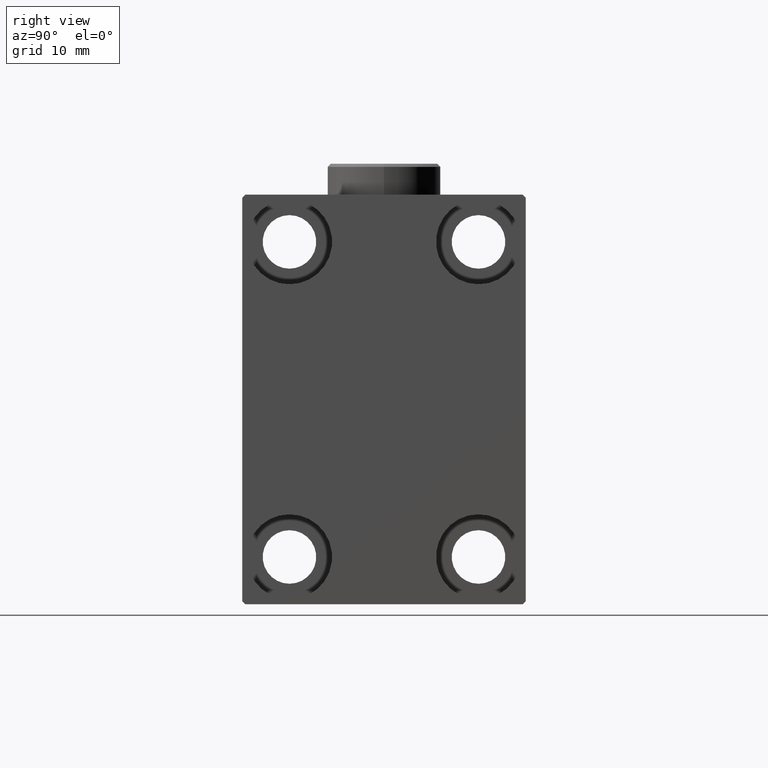
[diagram: clean part render]
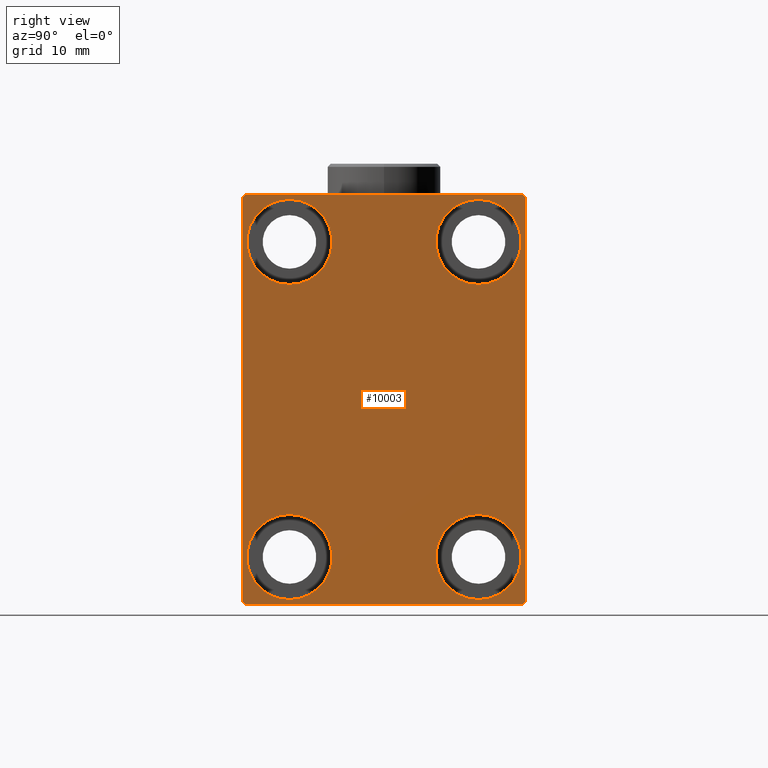
[diagram: same view with one face highlighted and labeled with its STEP entity id]
A machine part, right view. The second image highlights one B-rep face of the part: STEP entity #10003.
In plain terms, the highlighted planar face has unit normal (1, 0, 0).
Its self-contained STEP definition (entity closure, byte-faithful):
#655 = AXIS2_PLACEMENT_3D ( 'NONE', #2277, #5951, #16246 ) ;
#1473 = EDGE_CURVE ( 'NONE', #38731, #20334, #6616, .T. ) ;
#1902 = FACE_BOUND ( 'NONE', #36703, .T. ) ;
#2055 = VECTOR ( 'NONE', #3859, 1000.000000000000000 ) ;
#2233 = CARTESIAN_POINT ( 'NONE',  ( 70.00000000000000000, -22.50000000000000711, 31.99999999999999289 ) ) ;
#2277 = CARTESIAN_POINT ( 'NONE',  ( 70.00000000000000000, -14.99999999999999645, 25.00000000000000000 ) ) ;
#2443 = DIRECTION ( 'NONE',  ( 0.000000000000000000, -1.000000000000000000, -1.541976423090495387E-16 ) ) ;
#3030 = DIRECTION ( 'NONE',  ( 0.000000000000000000, 0.000000000000000000, 1.000000000000000000 ) ) ;
#3256 = EDGE_CURVE ( 'NONE', #29028, #9240, #28577, .T. ) ;
#3859 = DIRECTION ( 'NONE',  ( -0.000000000000000000, 0.7071067811865378028, -0.7071067811865573427 ) ) ;
#3940 = EDGE_LOOP ( 'NONE', ( #5705, #39640, #29679, #18976, #36416, #7003, #16248, #39121 ) ) ;
#4949 = CARTESIAN_POINT ( 'NONE',  ( 70.00000000000000000, -14.99999999999999645, 25.00000000000000000 ) ) ;
#5705 = ORIENTED_EDGE ( 'NONE', *, *, #19979, .T. ) ;
#5951 = DIRECTION ( 'NONE',  ( -1.000000000000000000, -0.000000000000000000, -0.000000000000000000 ) ) ;
#6288 = ORIENTED_EDGE ( 'NONE', *, *, #29808, .T. ) ;
#6470 = CARTESIAN_POINT ( 'NONE',  ( 70.00000000000000000, 22.50000000000000000, -32.00000000000002132 ) ) ;
#6579 = EDGE_CURVE ( 'NONE', #35802, #22661, #22049, .T. ) ;
#6616 = CIRCLE ( 'NONE', #26330, 6.749999999999999112 ) ;
#6804 = DIRECTION ( 'NONE',  ( 0.000000000000000000, -0.7071067811865474617, -0.7071067811865474617 ) ) ;
#7003 = ORIENTED_EDGE ( 'NONE', *, *, #6579, .T. ) ;
#7149 = VERTEX_POINT ( 'NONE', #19821 ) ;
#7468 = CARTESIAN_POINT ( 'NONE',  ( 70.00000000000000000, -27.25000000000000000, 27.25000000000000000 ) ) ;
#7485 = AXIS2_PLACEMENT_3D ( 'NONE', #11896, #15101, #29471 ) ;
#7834 = VERTEX_POINT ( 'NONE', #17421 ) ;
#8466 = DIRECTION ( 'NONE',  ( 0.000000000000000000, 0.000000000000000000, 1.000000000000000000 ) ) ;
#8545 = DIRECTION ( 'NONE',  ( 1.000000000000000000, 0.000000000000000000, 0.000000000000000000 ) ) ;
#8773 = PLANE ( 'NONE',  #34136 ) ;
#9187 = ORIENTED_EDGE ( 'NONE', *, *, #1473, .T. ) ;
#9240 = VERTEX_POINT ( 'NONE', #36173 ) ;
#9448 = DIRECTION ( 'NONE',  ( 0.000000000000000000, -1.067522139062650425E-16, 1.000000000000000000 ) ) ;
#9841 = DIRECTION ( 'NONE',  ( -1.000000000000000000, -0.000000000000000000, -0.000000000000000000 ) ) ;
#10003 = ADVANCED_FACE ( 'NONE', ( #25912, #29549, #1902, #22934, #43951 ), #8773, .T. ) ;
#10612 = VERTEX_POINT ( 'NONE', #23057 ) ;
#10738 = CARTESIAN_POINT ( 'NONE',  ( 70.00000000000000000, -27.25000000000032330, -27.24999999999957012 ) ) ;
#11004 = CARTESIAN_POINT ( 'NONE',  ( 70.00000000000000000, 15.00000000000000355, 25.00000000000000000 ) ) ;
#11054 = CARTESIAN_POINT ( 'NONE',  ( 70.00000000000000000, 14.99999999999999645, -18.25000000000000355 ) ) ;
#11336 = AXIS2_PLACEMENT_3D ( 'NONE', #4949, #22776, #33051 ) ;
#11629 = DIRECTION ( 'NONE',  ( -0.000000000000000000, -0.7071067811865425767, 0.7071067811865525687 ) ) ;
#11802 = EDGE_CURVE ( 'NONE', #16360, #27689, #13933, .T. ) ;
#11808 = EDGE_CURVE ( 'NONE', #7149, #35087, #39992, .T. ) ;
#11854 = LINE ( 'NONE', #28986, #34588 ) ;
#11896 = CARTESIAN_POINT ( 'NONE',  ( 70.00000000000000000, 14.99999999999999645, -25.00000000000000000 ) ) ;
#11923 = ORIENTED_EDGE ( 'NONE', *, *, #3256, .T. ) ;
#11998 = ORIENTED_EDGE ( 'NONE', *, *, #11808, .T. ) ;
#12680 = CARTESIAN_POINT ( 'NONE',  ( 70.00000000000000000, -21.99999999999999289, 32.49999999999999289 ) ) ;
#12740 = LINE ( 'NONE', #16632, #43913 ) ;
#12966 = EDGE_CURVE ( 'NONE', #38550, #43564, #38766, .T. ) ;
#13600 = VECTOR ( 'NONE', #40698, 1000.000000000000000 ) ;
#13842 = CARTESIAN_POINT ( 'NONE',  ( 70.00000000000000000, -22.50000000000000711, 32.49999999999999289 ) ) ;
#13933 = LINE ( 'NONE', #10738, #2055 ) ;
#14003 = CARTESIAN_POINT ( 'NONE',  ( 70.00000000000000000, 14.99999999999999645, -25.00000000000000000 ) ) ;
#14156 = DIRECTION ( 'NONE',  ( -1.000000000000000000, -0.000000000000000000, -0.000000000000000000 ) ) ;
#14158 = EDGE_CURVE ( 'NONE', #7834, #26757, #17488, .T. ) ;
#15101 = DIRECTION ( 'NONE',  ( -1.000000000000000000, -0.000000000000000000, -0.000000000000000000 ) ) ;
#15298 = ORIENTED_EDGE ( 'NONE', *, *, #39728, .T. ) ;
#15307 = EDGE_LOOP ( 'NONE', ( #15298, #9187 ) ) ;
#15374 = CIRCLE ( 'NONE', #39436, 6.749999999999999112 ) ;
#15835 = LINE ( 'NONE', #40731, #25718 ) ;
#15854 = CARTESIAN_POINT ( 'NONE',  ( 70.00000000000000000, 0.000000000000000000, 0.000000000000000000 ) ) ;
#15882 = ORIENTED_EDGE ( 'NONE', *, *, #33361, .T. ) ;
#16090 = CARTESIAN_POINT ( 'NONE',  ( 70.00000000000000000, 15.00000000000000355, 31.75000000000000000 ) ) ;
#16246 = DIRECTION ( 'NONE',  ( 0.000000000000000000, 0.000000000000000000, 1.000000000000000000 ) ) ;
#16248 = ORIENTED_EDGE ( 'NONE', *, *, #22234, .T. ) ;
#16360 = VERTEX_POINT ( 'NONE', #28987 ) ;
#16632 = CARTESIAN_POINT ( 'NONE',  ( 70.00000000000000000, 22.49999999999999289, 32.50000000000000000 ) ) ;
#17407 = EDGE_CURVE ( 'NONE', #9240, #29028, #15374, .T. ) ;
#17421 = CARTESIAN_POINT ( 'NONE',  ( 70.00000000000000000, -14.99999999999999645, 18.25000000000000355 ) ) ;
#17488 = CIRCLE ( 'NONE', #655, 6.749999999999999112 ) ;
#17641 = AXIS2_PLACEMENT_3D ( 'NONE', #22955, #18845, #22274 ) ;
#18845 = DIRECTION ( 'NONE',  ( -1.000000000000000000, -0.000000000000000000, -0.000000000000000000 ) ) ;
#18976 = ORIENTED_EDGE ( 'NONE', *, *, #11802, .T. ) ;
#19296 = CARTESIAN_POINT ( 'NONE',  ( 70.00000000000000000, 27.25000000000032685, -27.24999999999957012 ) ) ;
#19783 = EDGE_LOOP ( 'NONE', ( #43046, #15882 ) ) ;
#19821 = CARTESIAN_POINT ( 'NONE',  ( 70.00000000000000000, -15.00000000000000355, -18.25000000000000355 ) ) ;
#19979 = EDGE_CURVE ( 'NONE', #10612, #38550, #12740, .T. ) ;
#20334 = VERTEX_POINT ( 'NONE', #20437 ) ;
#20437 = CARTESIAN_POINT ( 'NONE',  ( 70.00000000000000000, 14.99999999999999645, -31.75000000000000000 ) ) ;
#21088 = VECTOR ( 'NONE', #6804, 1000.000000000000114 ) ;
#22049 = LINE ( 'NONE', #19296, #33733 ) ;
#22234 = EDGE_CURVE ( 'NONE', #22661, #42015, #15835, .T. ) ;
#22274 = DIRECTION ( 'NONE',  ( 0.000000000000000000, 0.000000000000000000, 1.000000000000000000 ) ) ;
#22488 = EDGE_CURVE ( 'NONE', #43564, #16360, #31641, .T. ) ;
#22661 = VERTEX_POINT ( 'NONE', #6470 ) ;
#22776 = DIRECTION ( 'NONE',  ( -1.000000000000000000, -0.000000000000000000, -0.000000000000000000 ) ) ;
#22883 = CARTESIAN_POINT ( 'NONE',  ( 70.00000000000000000, -22.50000000000000711, -32.50000000000000711 ) ) ;
#22934 = FACE_BOUND ( 'NONE', #28107, .T. ) ;
#22955 = CARTESIAN_POINT ( 'NONE',  ( 70.00000000000000000, 15.00000000000000355, 25.00000000000000000 ) ) ;
#23057 = CARTESIAN_POINT ( 'NONE',  ( 70.00000000000000000, 21.99999999999999289, 32.50000000000000000 ) ) ;
#24602 = CARTESIAN_POINT ( 'NONE',  ( 70.00000000000000000, -15.00000000000000355, -25.00000000000000000 ) ) ;
#25113 = CARTESIAN_POINT ( 'NONE',  ( 70.00000000000000000, -15.00000000000000355, -25.00000000000000000 ) ) ;
#25718 = VECTOR ( 'NONE', #9448, 1000.000000000000000 ) ;
#25912 = FACE_BOUND ( 'NONE', #15307, .T. ) ;
#26330 = AXIS2_PLACEMENT_3D ( 'NONE', #14003, #41427, #3030 ) ;
#26757 = VERTEX_POINT ( 'NONE', #44495 ) ;
#27639 = AXIS2_PLACEMENT_3D ( 'NONE', #25113, #14156, #27650 ) ;
#27650 = DIRECTION ( 'NONE',  ( 0.000000000000000000, 0.000000000000000000, 1.000000000000000000 ) ) ;
#27689 = VERTEX_POINT ( 'NONE', #31032 ) ;
#28107 = EDGE_LOOP ( 'NONE', ( #6288, #11998 ) ) ;
#28577 = CIRCLE ( 'NONE', #17641, 6.749999999999999112 ) ;
#28652 = DIRECTION ( 'NONE',  ( 0.000000000000000000, 0.000000000000000000, -1.000000000000000000 ) ) ;
#28986 = CARTESIAN_POINT ( 'NONE',  ( 70.00000000000000000, 27.25000000000014921, 27.24999999999976907 ) ) ;
#28987 = CARTESIAN_POINT ( 'NONE',  ( 70.00000000000000000, -22.50000000000000711, -32.00000000000000711 ) ) ;
#29028 = VERTEX_POINT ( 'NONE', #16090 ) ;
#29471 = DIRECTION ( 'NONE',  ( 0.000000000000000000, 0.000000000000000000, 1.000000000000000000 ) ) ;
#29541 = CIRCLE ( 'NONE', #11336, 6.749999999999999112 ) ;
#29549 = FACE_BOUND ( 'NONE', #19783, .T. ) ;
#29679 = ORIENTED_EDGE ( 'NONE', *, *, #22488, .T. ) ;
#29715 = LINE ( 'NONE', #22883, #13600 ) ;
#29767 = DIRECTION ( 'NONE',  ( 0.000000000000000000, 0.000000000000000000, -1.000000000000000000 ) ) ;
#29808 = EDGE_CURVE ( 'NONE', #35087, #7149, #44048, .T. ) ;
#29865 = CARTESIAN_POINT ( 'NONE',  ( 70.00000000000000000, 22.49999999999999289, 31.99999999999999289 ) ) ;
#30075 = CIRCLE ( 'NONE', #7485, 6.749999999999999112 ) ;
#31032 = CARTESIAN_POINT ( 'NONE',  ( 70.00000000000000000, -22.00000000000002132, -32.50000000000000711 ) ) ;
#31558 = VECTOR ( 'NONE', #28652, 1000.000000000000000 ) ;
#31641 = LINE ( 'NONE', #13842, #31558 ) ;
#33051 = DIRECTION ( 'NONE',  ( 0.000000000000000000, 0.000000000000000000, 1.000000000000000000 ) ) ;
#33226 = DIRECTION ( 'NONE',  ( -0.000000000000000000, 0.7071067811865376918, 0.7071067811865573427 ) ) ;
#33361 = EDGE_CURVE ( 'NONE', #26757, #7834, #29541, .T. ) ;
#33733 = VECTOR ( 'NONE', #33226, 1000.000000000000114 ) ;
#34136 = AXIS2_PLACEMENT_3D ( 'NONE', #15854, #8545, #29767 ) ;
#34588 = VECTOR ( 'NONE', #11629, 999.9999999999998863 ) ;
#35087 = VERTEX_POINT ( 'NONE', #40873 ) ;
#35648 = DIRECTION ( 'NONE',  ( -1.000000000000000000, -0.000000000000000000, -0.000000000000000000 ) ) ;
#35802 = VERTEX_POINT ( 'NONE', #43666 ) ;
#36173 = CARTESIAN_POINT ( 'NONE',  ( 70.00000000000000000, 15.00000000000000355, 18.25000000000000355 ) ) ;
#36416 = ORIENTED_EDGE ( 'NONE', *, *, #36671, .T. ) ;
#36671 = EDGE_CURVE ( 'NONE', #27689, #35802, #29715, .T. ) ;
#36703 = EDGE_LOOP ( 'NONE', ( #38805, #11923 ) ) ;
#38521 = DIRECTION ( 'NONE',  ( 0.000000000000000000, 0.000000000000000000, 1.000000000000000000 ) ) ;
#38550 = VERTEX_POINT ( 'NONE', #12680 ) ;
#38731 = VERTEX_POINT ( 'NONE', #11054 ) ;
#38766 = LINE ( 'NONE', #7468, #21088 ) ;
#38805 = ORIENTED_EDGE ( 'NONE', *, *, #17407, .T. ) ;
#39121 = ORIENTED_EDGE ( 'NONE', *, *, #44635, .T. ) ;
#39436 = AXIS2_PLACEMENT_3D ( 'NONE', #11004, #35648, #8466 ) ;
#39640 = ORIENTED_EDGE ( 'NONE', *, *, #12966, .T. ) ;
#39728 = EDGE_CURVE ( 'NONE', #20334, #38731, #30075, .T. ) ;
#39992 = CIRCLE ( 'NONE', #27639, 6.749999999999999112 ) ;
#40698 = DIRECTION ( 'NONE',  ( 0.000000000000000000, 1.000000000000000000, 0.000000000000000000 ) ) ;
#40731 = CARTESIAN_POINT ( 'NONE',  ( 70.00000000000000000, 22.50000000000000000, -32.50000000000000711 ) ) ;
#40873 = CARTESIAN_POINT ( 'NONE',  ( 70.00000000000000000, -15.00000000000000355, -31.75000000000000000 ) ) ;
#41159 = AXIS2_PLACEMENT_3D ( 'NONE', #24602, #9841, #38521 ) ;
#41427 = DIRECTION ( 'NONE',  ( -1.000000000000000000, -0.000000000000000000, -0.000000000000000000 ) ) ;
#42015 = VERTEX_POINT ( 'NONE', #29865 ) ;
#43046 = ORIENTED_EDGE ( 'NONE', *, *, #14158, .T. ) ;
#43564 = VERTEX_POINT ( 'NONE', #2233 ) ;
#43666 = CARTESIAN_POINT ( 'NONE',  ( 70.00000000000000000, 22.00000000000001421, -32.50000000000000711 ) ) ;
#43913 = VECTOR ( 'NONE', #2443, 1000.000000000000000 ) ;
#43951 = FACE_OUTER_BOUND ( 'NONE', #3940, .T. ) ;
#44048 = CIRCLE ( 'NONE', #41159, 6.749999999999999112 ) ;
#44495 = CARTESIAN_POINT ( 'NONE',  ( 70.00000000000000000, -14.99999999999999645, 31.75000000000000000 ) ) ;
#44635 = EDGE_CURVE ( 'NONE', #42015, #10612, #11854, .T. ) ;